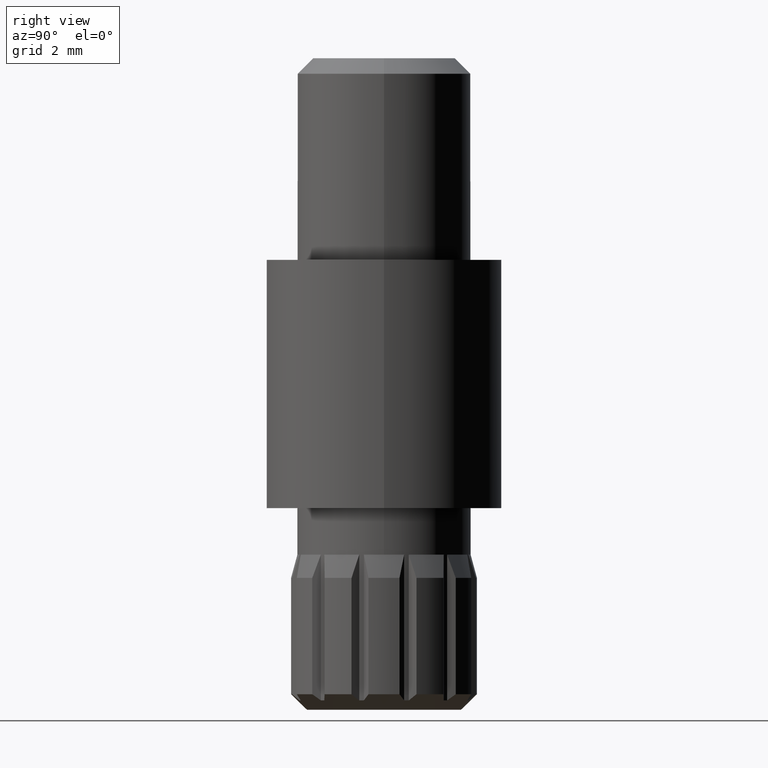
[diagram: clean part render]
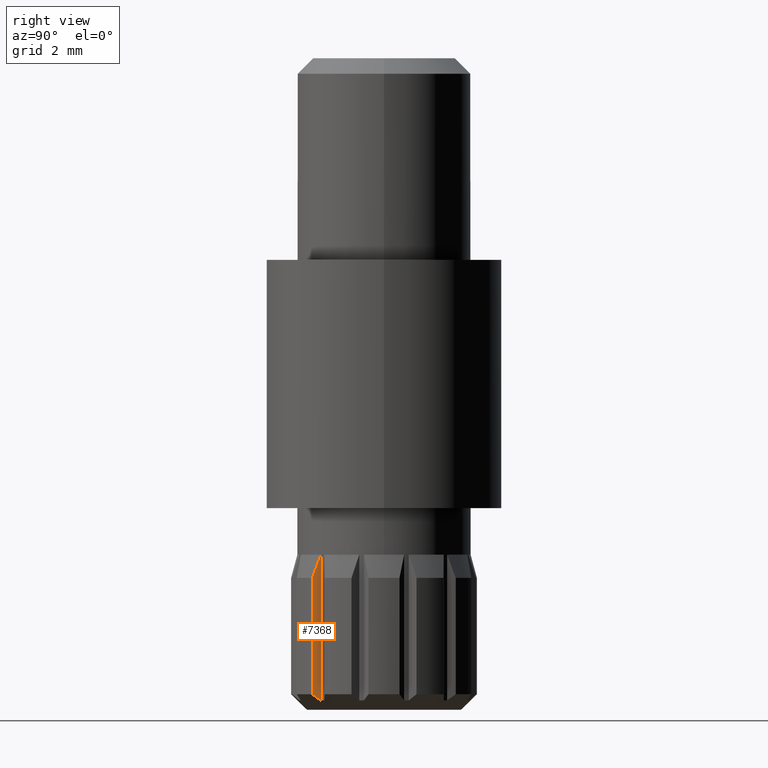
[diagram: same view with one face highlighted and labeled with its STEP entity id]
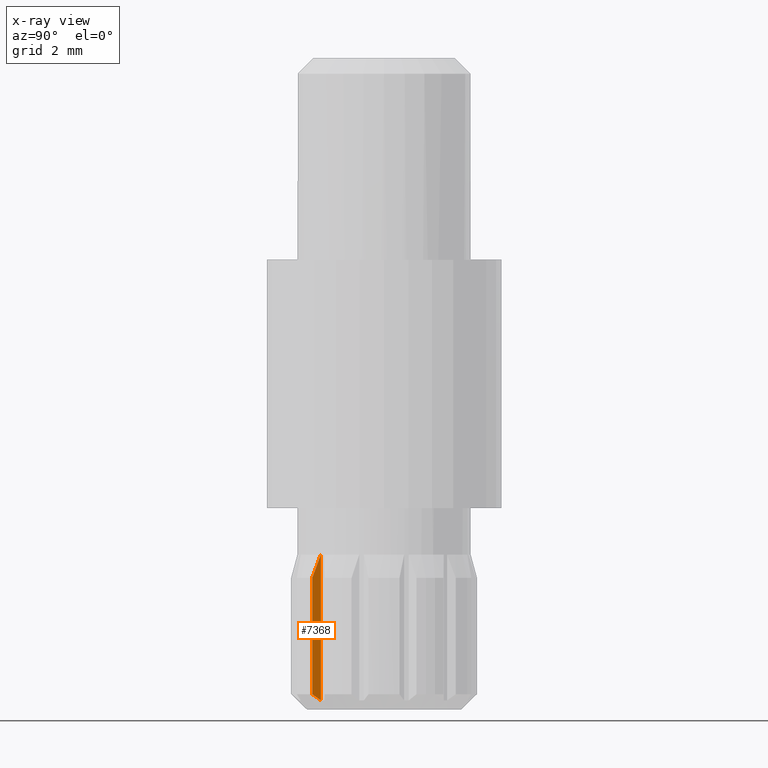
[diagram: x-ray of the same camera — body ghosted, the highlighted face saturated]
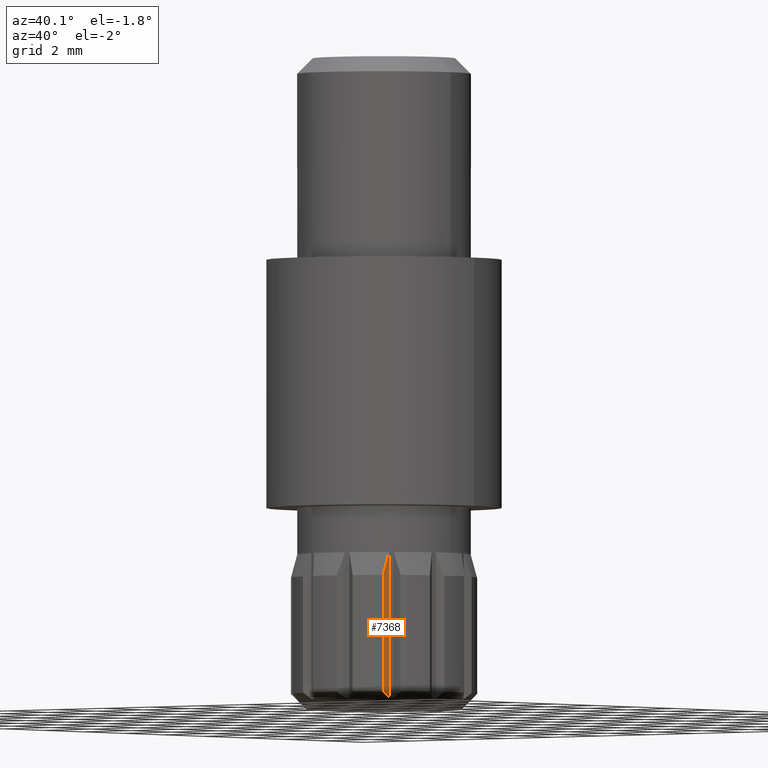
[diagram: same view with one face highlighted and labeled with its STEP entity id]
A machine part, right view. The second image highlights one B-rep face of the part: STEP entity #7368.
The next image is the same camera in x-ray: the body ghosted, the highlighted face saturated — about 0% of this face is hidden behind the body in this view.
A second angle (auxiliary view) of the same face is appended — the face is thin or edge-on in the first view.
In plain terms, the highlighted planar face has unit normal (0.999, -0.0454, 0).
Its self-contained STEP definition (entity closure, byte-faithful):
#372 = FACE_OUTER_BOUND ( 'NONE', #8890, .T. ) ;
#784 = VERTEX_POINT ( 'NONE', #1219 ) ;
#1219 = CARTESIAN_POINT ( 'NONE',  ( 1.912032647667110100, -2.311737691489911900, 4.250000000000000000 ) ) ;
#1961 = CARTESIAN_POINT ( 'NONE',  ( 1.920410119468683100, -2.127387933370354000, 0.3651688080806903000 ) ) ;
#2177 = CARTESIAN_POINT ( 'NONE',  ( 1.920330675035805800, -2.129136141222530000, 4.751060318361801600 ) ) ;
#2382 = DIRECTION ( 'NONE',  ( 0.0000000000000000000, 0.0000000000000000000, -1.000000000000000000 ) ) ;
#2959 = CARTESIAN_POINT ( 'NONE',  ( 1.924670895599505300, -2.033627779027469300, 0.2999999999999997700 ) ) ;
#3010 = VERTEX_POINT ( 'NONE', #8714 ) ;
#3047 = PLANE ( 'NONE',  #6552 ) ;
#3212 = ORIENTED_EDGE ( 'NONE', *, *, #7742, .F. ) ;
#3941 = CARTESIAN_POINT ( 'NONE',  ( 1.924670895599505300, -2.033627779027469300, 5.000000000000000900 ) ) ;
#4164 = CARTESIAN_POINT ( 'NONE',  ( 1.912032647667110100, -2.311737691489911900, 4.250000000000000000 ) ) ;
#4646 = VERTEX_POINT ( 'NONE', #3941 ) ;
#5117 = DIRECTION ( 'NONE',  ( 0.9989690471594135900, -0.04539650666530836700, 0.0000000000000000000 ) ) ;
#5430 = CARTESIAN_POINT ( 'NONE',  ( 1.924670895599505300, -2.033627779027469300, 0.2999999999999997700 ) ) ;
#5867 = VERTEX_POINT ( 'NONE', #5430 ) ;
#6042 = CARTESIAN_POINT ( 'NONE',  ( 1.912032647667110100, -2.311737691489910600, 0.4999999999999998900 ) ) ;
#6176 = ORIENTED_EDGE ( 'NONE', *, *, #6907, .T. ) ;
#6552 = AXIS2_PLACEMENT_3D ( 'NONE', #11207, #5117, #12226 ) ;
#6708 = DIRECTION ( 'NONE',  ( 0.0000000000000000000, 0.0000000000000000000, -1.000000000000000000 ) ) ;
#6907 = EDGE_CURVE ( 'NONE', #784, #3010, #8011, .T. ) ;
#7368 = ADVANCED_FACE ( 'NONE', ( #372 ), #3047, .T. ) ;
#7742 = EDGE_CURVE ( 'NONE', #784, #4646, #8698, .T. ) ;
#7823 = ORIENTED_EDGE ( 'NONE', *, *, #12240, .F. ) ;
#8011 = LINE ( 'NONE', #12817, #8337 ) ;
#8337 = VECTOR ( 'NONE', #6708, 1000.000000000000000 ) ;
#8698 = B_SPLINE_CURVE_WITH_KNOTS ( 'NONE', 3,
 ( #4164, #10257, #2177, #9257 ),
 .UNSPECIFIED., .F., .F.,
 ( 4, 4 ),
 ( 2.125509851734810400E-007, 0.0008002155814297953200 ),
 .UNSPECIFIED. ) ;
#8714 = CARTESIAN_POINT ( 'NONE',  ( 1.912032647667110100, -2.311737691489910600, 0.4999999999999998900 ) ) ;
#8890 = EDGE_LOOP ( 'NONE', ( #3212, #6176, #12602, #7823 ) ) ;
#9223 = VECTOR ( 'NONE', #2382, 1000.000000000000000 ) ;
#9257 = CARTESIAN_POINT ( 'NONE',  ( 1.924670895599505300, -2.033627779027469300, 5.000000000000000900 ) ) ;
#9432 = B_SPLINE_CURVE_WITH_KNOTS ( 'NONE', 3,
 ( #2959, #1961, #12147, #6042 ),
 .UNSPECIFIED., .F., .F.,
 ( 4, 4 ),
 ( 2.437016887063256100E-007, 0.0003430335042216862300 ),
 .UNSPECIFIED. ) ;
#10257 = CARTESIAN_POINT ( 'NONE',  ( 1.916132568165369100, -2.221517232374599100, 4.500908567543602200 ) ) ;
#11207 = CARTESIAN_POINT ( 'NONE',  ( 1.924670895599505300, -2.033627779027469300, 5.000000000000000000 ) ) ;
#11502 = CARTESIAN_POINT ( 'NONE',  ( 1.924670895599505300, -2.033627779027469300, 5.000000000000000000 ) ) ;
#11553 = EDGE_CURVE ( 'NONE', #5867, #3010, #9432, .T. ) ;
#12147 = CARTESIAN_POINT ( 'NONE',  ( 1.916200600912734800, -2.220020143417681600, 0.4319807832766577300 ) ) ;
#12226 = DIRECTION ( 'NONE',  ( 0.04539650666530836700, 0.9989690471594135900, 0.0000000000000000000 ) ) ;
#12240 = EDGE_CURVE ( 'NONE', #4646, #5867, #12278, .T. ) ;
#12278 = LINE ( 'NONE', #11502, #9223 ) ;
#12602 = ORIENTED_EDGE ( 'NONE', *, *, #11553, .F. ) ;
#12817 = CARTESIAN_POINT ( 'NONE',  ( 1.912032647667110100, -2.311737691489910600, 5.000000000000000000 ) ) ;